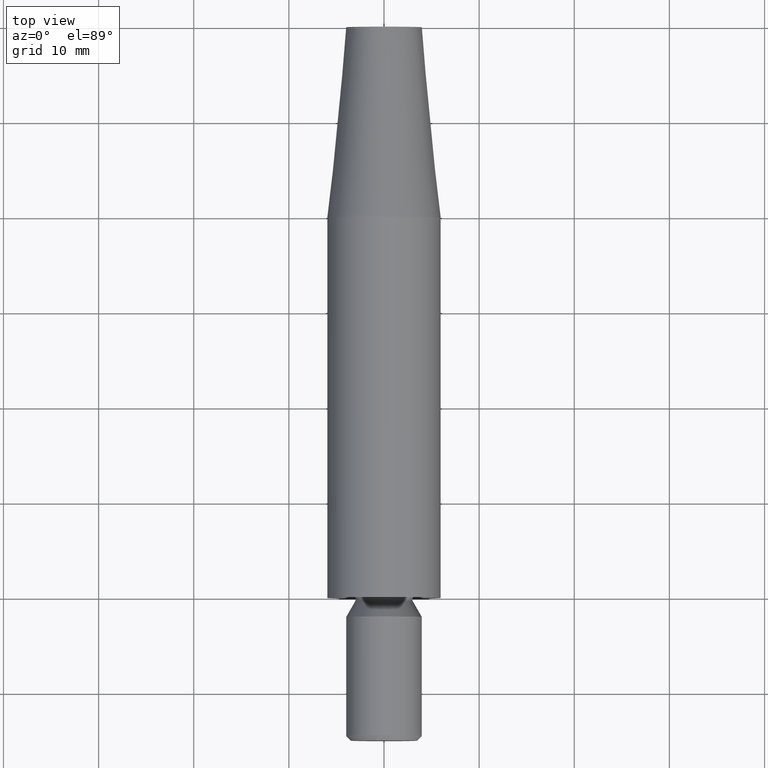
[diagram: clean part render]
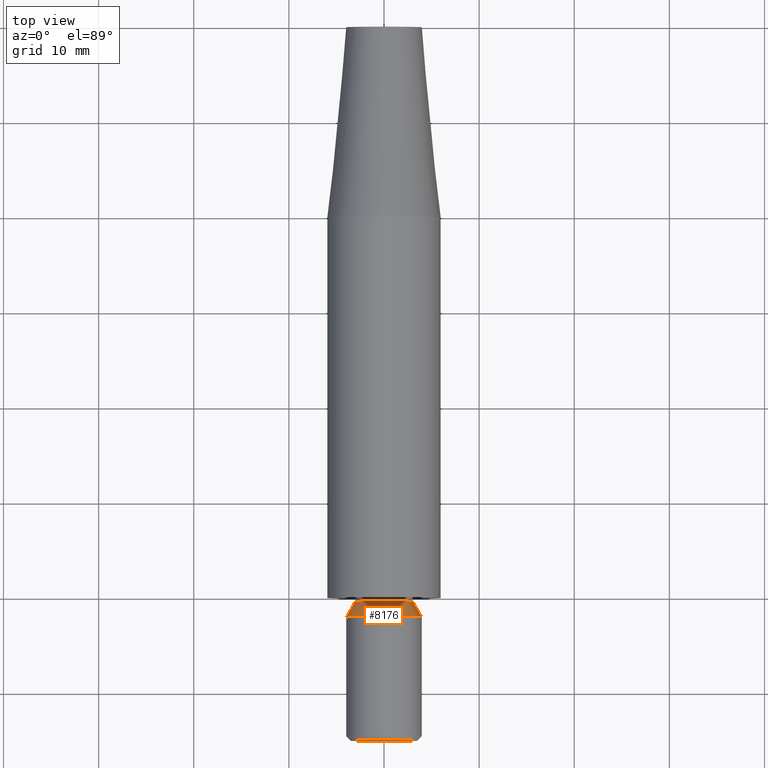
[diagram: same view with one face highlighted and labeled with its STEP entity id]
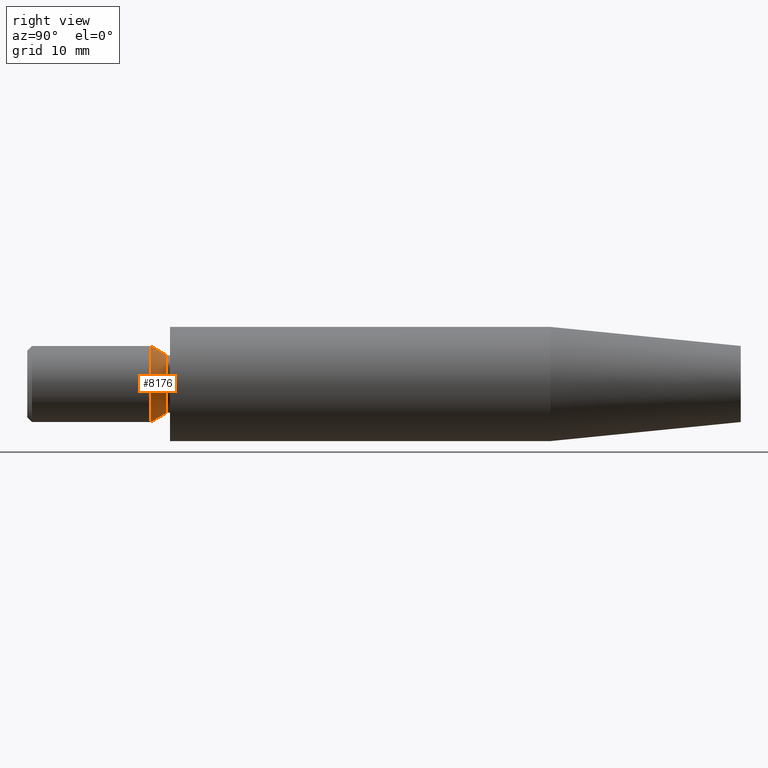
[diagram: same view with one face highlighted and labeled with its STEP entity id]
A machine part, top view. The second image highlights one B-rep face of the part: STEP entity #8176.
A second angle (right view) of the same face is appended — the face is thin or edge-on in the first view.
In plain terms, the highlighted conical surface has half-angle 30 deg.
Its self-contained STEP definition (entity closure, byte-faithful):
#261 = CARTESIAN_POINT ( 'NONE',  ( 0.000000000000000000, -0.3585010224134519419, -3.052280123415906044 ) ) ;
#1144 = DIRECTION ( 'NONE',  ( 0.000000000000000000, 0.000000000000000000, -1.000000000000000000 ) ) ;
#1506 = CARTESIAN_POINT ( 'NONE',  ( 0.000000000000000000, -2.000000000000000000, 0.000000000000000000 ) ) ;
#2174 = DIRECTION ( 'NONE',  ( -0.000000000000000000, -1.000000000000000000, -0.000000000000000000 ) ) ;
#2659 = CIRCLE ( 'NONE', #9058, 3.052280123415906044 ) ;
#2861 = ORIENTED_EDGE ( 'NONE', *, *, #4254, .T. ) ;
#3501 = DIRECTION ( 'NONE',  ( -0.000000000000000000, -1.000000000000000000, -0.000000000000000000 ) ) ;
#3718 = AXIS2_PLACEMENT_3D ( 'NONE', #1506, #3501, #6621 ) ;
#3742 = DIRECTION ( 'NONE',  ( 0.000000000000000000, 0.000000000000000000, -1.000000000000000000 ) ) ;
#4254 = EDGE_CURVE ( 'NONE', #11270, #11270, #2659, .T. ) ;
#4649 = ORIENTED_EDGE ( 'NONE', *, *, #8369, .F. ) ;
#5641 = CONICAL_SURFACE ( 'NONE', #3718, 4.000000000000000000, 0.5235987755983011471 ) ;
#6265 = FACE_BOUND ( 'NONE', #11882, .T. ) ;
#6453 = EDGE_LOOP ( 'NONE', ( #4649 ) ) ;
#6621 = DIRECTION ( 'NONE',  ( 0.000000000000000000, 0.000000000000000000, -1.000000000000000000 ) ) ;
#7200 = CIRCLE ( 'NONE', #8196, 4.000000000000000000 ) ;
#7765 = DIRECTION ( 'NONE',  ( -0.000000000000000000, -1.000000000000000000, -0.000000000000000000 ) ) ;
#7971 = VERTEX_POINT ( 'NONE', #9216 ) ;
#7976 = FACE_OUTER_BOUND ( 'NONE', #6453, .T. ) ;
#8176 = ADVANCED_FACE ( 'NONE', ( #6265, #7976 ), #5641, .T. ) ;
#8196 = AXIS2_PLACEMENT_3D ( 'NONE', #9117, #2174, #1144 ) ;
#8369 = EDGE_CURVE ( 'NONE', #7971, #7971, #7200, .T. ) ;
#8842 = CARTESIAN_POINT ( 'NONE',  ( 0.000000000000000000, -0.3585010224134519419, 0.000000000000000000 ) ) ;
#9058 = AXIS2_PLACEMENT_3D ( 'NONE', #8842, #7765, #3742 ) ;
#9117 = CARTESIAN_POINT ( 'NONE',  ( 0.000000000000000000, -2.000000000000000000, 0.000000000000000000 ) ) ;
#9216 = CARTESIAN_POINT ( 'NONE',  ( 0.000000000000000000, -2.000000000000000000, -4.000000000000000000 ) ) ;
#11270 = VERTEX_POINT ( 'NONE', #261 ) ;
#11882 = EDGE_LOOP ( 'NONE', ( #2861 ) ) ;